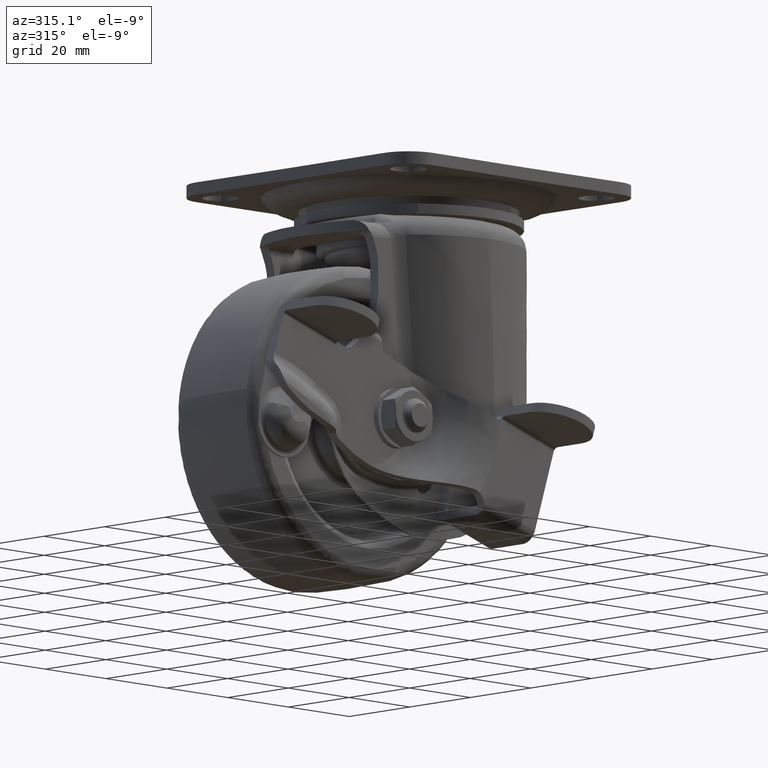
[diagram: clean part render]
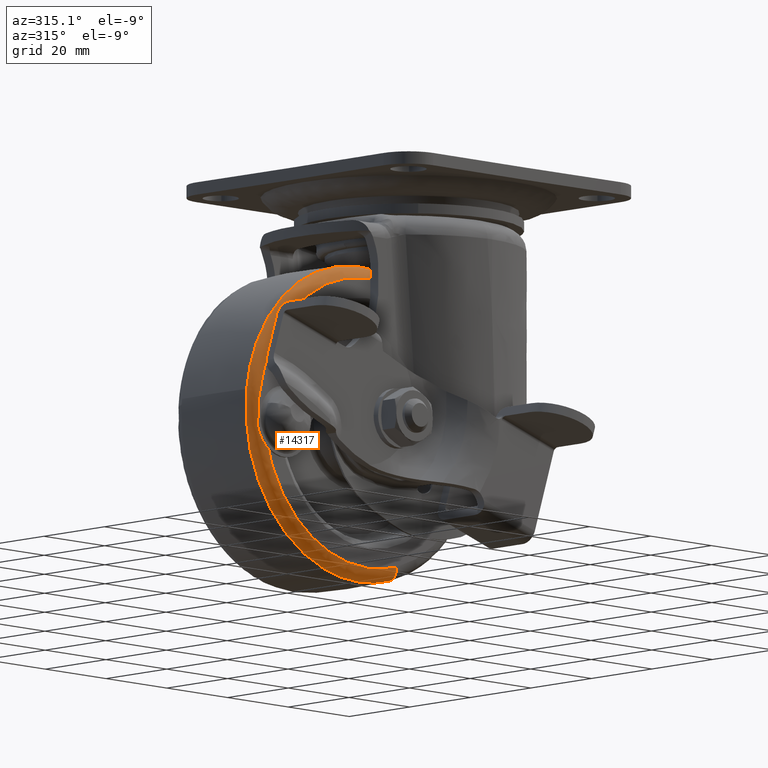
[diagram: same view with one face highlighted and labeled with its STEP entity id]
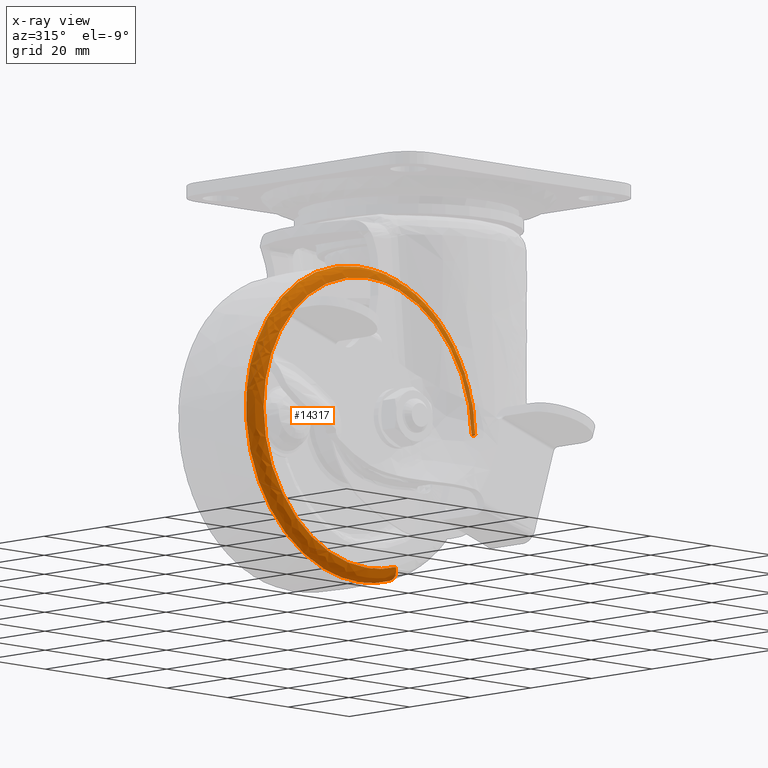
[diagram: x-ray of the same camera — body ghosted, the highlighted face saturated]
A machine part, auxiliary view. The second image highlights one B-rep face of the part: STEP entity #14317.
The next image is the same camera in x-ray: the body ghosted, the highlighted face saturated — about 3% of this face is hidden behind the body in this view.
In plain terms, the highlighted face is a freeform B-spline surface patch.
Its self-contained STEP definition (entity closure, byte-faithful):
#14085=CARTESIAN_POINT('',(10.069735967800030,-10.659898532963270,-96.327500795412334));
#14086=VERTEX_POINT('',#14085);
#14087=CARTESIAN_POINT('',(37.189271541351353,-10.659899947527540,-59.097332928867893));
#14088=VERTEX_POINT('',#14087);
#14104=CARTESIAN_POINT('',(34.195664798568473,-13.499999999999989,-59.210242738030743));
#14105=VERTEX_POINT('',#14104);
#14106=CARTESIAN_POINT('',(37.189271541351353,-10.659899947527540,-59.097332928867893));
#14107=CARTESIAN_POINT('',(37.170618175609633,-11.015117136108280,-59.098036477526733));
#14108=CARTESIAN_POINT('',(37.037789593225597,-11.577650346023880,-59.103046370686300));
#14109=CARTESIAN_POINT('',(36.626500837234722,-12.303735326046111,-59.118558940967610));
#14110=CARTESIAN_POINT('',(36.185433228083014,-12.774898771029120,-59.135194679681341));
#14111=CARTESIAN_POINT('',(35.637707360740031,-13.153581483426770,-59.155853245902591));
#14112=CARTESIAN_POINT('',(35.001216441651422,-13.425231554814300,-59.179859761902513));
#14113=CARTESIAN_POINT('',(34.479994441263422,-13.500106305026691,-59.199518682261001));
#14114=CARTESIAN_POINT('',(34.195664798568473,-13.499999999999989,-59.210242738030743));
#14115=B_SPLINE_CURVE_WITH_KNOTS('',3,(#14106,#14107,#14108,#14109,#14110,#14111,#14112,#14113,#14114),.UNSPECIFIED.,.F.,.U.,(4,1,1,1,1,1,4),(0.000000311799342,1.066994627236898,1.707203870185241,2.489612722966134,2.987563614405260,3.698924522841137,4.552519473919956),.UNSPECIFIED.);
#14116=EDGE_CURVE('',#14088,#14105,#14115,.T.);
#14118=CARTESIAN_POINT('',(9.259157306683326,-13.499999999999989,-93.443511807253586));
#14119=VERTEX_POINT('',#14118);
#14135=CARTESIAN_POINT('',(10.069735967800030,-10.659898532963270,-96.327500795412334));
#14136=CARTESIAN_POINT('',(10.066329096902891,-10.896663667484960,-96.315379358458628));
#14137=CARTESIAN_POINT('',(10.044211811572669,-11.367164035316719,-96.236687418521811));
#14138=CARTESIAN_POINT('',(9.964579443252905,-12.046371409733799,-95.953360353147829));
#14139=CARTESIAN_POINT('',(9.845874794215449,-12.613988892762761,-95.531016517713184));
#14140=CARTESIAN_POINT('',(9.699876279078493,-13.046493954885230,-95.011562786513906));
#14141=CARTESIAN_POINT('',(9.509314597790862,-13.397550297220389,-94.333556052827888));
#14142=CARTESIAN_POINT('',(9.355403335998291,-13.500291107747810,-93.785949255999256));
#14143=CARTESIAN_POINT('',(9.259157306683326,-13.499999999999989,-93.443511807253586));
#14144=B_SPLINE_CURVE_WITH_KNOTS('',3,(#14135,#14136,#14137,#14138,#14139,#14140,#14141,#14142,#14143),.UNSPECIFIED.,.F.,.U.,(4,1,1,1,1,1,4),(0.000000311794504,0.711304518510792,1.422666534817779,2.205174275777040,2.845318240321744,3.485526680914022,4.552520882826151),.UNSPECIFIED.);
#14145=EDGE_CURVE('',#14086,#14119,#14144,.T.);
#14150=CARTESIAN_POINT('',(37.193217918852888,-10.456517229577232,-59.097184083466821));
#14151=CARTESIAN_POINT('',(35.790402002319702,-10.456517229577232,-21.903966164613951));
#14152=CARTESIAN_POINT('',(-1.402815916533165,-10.456517229577232,-23.306782081147119));
#14153=CARTESIAN_POINT('',(-38.596033835386045,-10.456517229577232,-24.709597997680280));
#14154=CARTESIAN_POINT('',(-37.193217918852888,-10.456517229577232,-61.902815916533172));
#14155=CARTESIAN_POINT('',(-35.790402002319702,-10.456517229577232,-99.096033835386038));
#14156=CARTESIAN_POINT('',(1.402815916533169,-10.456517229577232,-97.693217918852881));
#14157=CARTESIAN_POINT('',(5.817639684276930,-10.456517229577232,-97.526704091961321));
#14158=CARTESIAN_POINT('',(10.070804517104849,-10.456517229577232,-96.331302628193939));
#14159=CARTESIAN_POINT('',(37.240398228411969,-13.713593272613535,-59.095404584598484));
#14160=CARTESIAN_POINT('',(35.835802813010481,-13.713593272613537,-21.855006356186518));
#14161=CARTESIAN_POINT('',(-1.404595415401503,-13.713593272613535,-23.259601771588002));
#14162=CARTESIAN_POINT('',(-38.644993643813500,-13.713593272613537,-24.664197186989533));
#14163=CARTESIAN_POINT('',(-37.240398228411969,-13.713593272613535,-61.904595415401495));
#14164=CARTESIAN_POINT('',(-35.835802813010481,-13.713593272613537,-99.144993643813535));
#14165=CARTESIAN_POINT('',(1.404595415401507,-13.713593272613535,-97.740398228411976));
#14166=CARTESIAN_POINT('',(5.825019471683505,-13.713593272613537,-97.573673175540577));
#14167=CARTESIAN_POINT('',(10.083579525593295,-13.713593272613535,-96.376755322112288));
#14168=CARTESIAN_POINT('',(33.992758900243814,-13.493120575985017,-59.217895737438596));
#14169=CARTESIAN_POINT('',(32.710654637682410,-13.493120575985017,-25.225136837194778));
#14170=CARTESIAN_POINT('',(-1.282104262561403,-13.493120575985017,-26.507241099756182));
#14171=CARTESIAN_POINT('',(-35.274863162805218,-13.493120575985017,-27.789345362317587));
#14172=CARTESIAN_POINT('',(-33.992758900243814,-13.493120575985017,-61.782104262561404));
#14173=CARTESIAN_POINT('',(-32.710654637682410,-13.493120575985017,-95.774863162805246));
#14174=CARTESIAN_POINT('',(1.282104262561406,-13.493120575985017,-94.492758900243828));
#14175=CARTESIAN_POINT('',(5.317034508484269,-13.493120575985023,-94.340573510331296));
#14176=CARTESIAN_POINT('',(9.204216495284896,-13.493120575985023,-93.248035783816235));
#14184=(BOUNDED_SURFACE()B_SPLINE_SURFACE(2,2,((#14150,#14159,#14168),(#14151,#14160,#14169),(#14152,#14161,#14170),(#14153,#14162,#14171),(#14154,#14163,#14172),(#14155,#14164,#14173),(#14156,#14165,#14174),(#14157,#14166,#14175),(#14158,#14167,#14176)),.UNSPECIFIED.,.F.,.F.,.U.)B_SPLINE_SURFACE_WITH_KNOTS((3,2,2,2,3),(3,3),(0.0,61.667557648044507,123.335115296089000,185.002672944133510,194.869482167820710),(0.0,5.262100299727032),.UNSPECIFIED.)GEOMETRIC_REPRESENTATION_ITEM()RATIONAL_B_SPLINE_SURFACE(((0.915610659033981,0.620680349365837,0.916805829764877),(0.647434505929612,0.438887283985819,0.648279619258104),(0.915610659033981,0.620680349365837,0.916805829764877),(0.647434505929612,0.438887283985819,0.648279619258104),(0.915610659033981,0.620680349365837,0.916805829764877),(0.647434505929612,0.438887283985819,0.648279619258104),(0.915610659033981,0.620680349365837,0.916805829764877),(0.872702474537282,0.591593458905034,0.873841636083794),(0.843524909079526,0.571814373391688,0.844625984380657)))REPRESENTATION_ITEM('')SURFACE());
#14185=CARTESIAN_POINT('',(0.0,-10.659898477157340,-97.715714365336453));
#14186=VERTEX_POINT('',#14185);
#14187=CARTESIAN_POINT('',(0.0,-10.659898477157340,-97.715714365336453));
#14188=CARTESIAN_POINT('',(3.399006450980416,-10.659898477135799,-97.716250707497139));
#14189=CARTESIAN_POINT('',(6.797715983534757,-10.659898495956410,-97.248073843471317));
#14190=CARTESIAN_POINT('',(10.069735967800030,-10.659898532963270,-96.327500795412334));
#14191=B_SPLINE_CURVE_WITH_KNOTS('',3,(#14187,#14188,#14189,#14190),.UNSPECIFIED.,.F.,.U.,(4,4),(2.173593E-009,10.196872120510120),.UNSPECIFIED.);
#14192=EDGE_CURVE('',#14186,#14086,#14191,.T.);
#14193=ORIENTED_EDGE('',*,*,#14192,.T.);
#14194=ORIENTED_EDGE('',*,*,#14145,.T.);
#14195=CARTESIAN_POINT('',(0.0,-13.500000000000000,-94.719979000000095));
#14196=VERTEX_POINT('',#14195);
#14197=CARTESIAN_POINT('',(0.0,-13.500000000000000,-94.719979000000095));
#14198=CARTESIAN_POINT('',(3.125414127484582,-13.499999999999959,-94.720581315632145));
#14199=CARTESIAN_POINT('',(6.250507618007710,-13.500000000000011,-94.289879901556830));
#14200=CARTESIAN_POINT('',(9.259157306683326,-13.499999999999989,-93.443511807253586));
#14201=B_SPLINE_CURVE_WITH_KNOTS('',3,(#14197,#14198,#14199,#14200),.UNSPECIFIED.,.F.,.U.,(4,4),(1.998604E-009,9.376059438122141),.UNSPECIFIED.);
#14202=EDGE_CURVE('',#14196,#14119,#14201,.T.);
#14203=ORIENTED_EDGE('',*,*,#14202,.F.);
#14204=CARTESIAN_POINT('',(-34.219978999999960,-13.500000000000000,-60.500002976506302));
#14205=VERTEX_POINT('',#14204);
#14206=CARTESIAN_POINT('',(-34.219978999999960,-13.500000000000000,-60.500002976506302));
#14207=CARTESIAN_POINT('',(-34.220118049947757,-13.500000000000030,-62.459737437889139));
#14208=CARTESIAN_POINT('',(-33.870391970890907,-13.499999999999959,-66.519160653584450));
#14209=CARTESIAN_POINT('',(-32.440661313622613,-13.500000000000030,-71.811819418938896));
#14210=CARTESIAN_POINT('',(-30.252493425009629,-13.499999999999980,-76.748044046609792));
#14211=CARTESIAN_POINT('',(-27.822063731746159,-13.500000000000121,-80.612265559703147));
#14212=CARTESIAN_POINT('',(-24.572626888066790,-13.499999999999760,-84.474057472143670));
#14213=CARTESIAN_POINT('',(-20.972138077745949,-13.500000000000020,-87.717386053561697));
#14214=CARTESIAN_POINT('',(-16.854189439768948,-13.499999999999980,-90.396229538171937));
#14215=CARTESIAN_POINT('',(-12.171084893552100,-13.500000000000210,-92.629039894933854));
#14216=CARTESIAN_POINT('',(-6.649008637031785,-13.499999999999440,-94.285564775732354));
#14217=CARTESIAN_POINT('',(-2.239706872028387,-13.500000000000711,-94.720243746942842));
#14218=CARTESIAN_POINT('',(0.0,-13.500000000000000,-94.719979000000095));
#14219=B_SPLINE_CURVE_WITH_KNOTS('',3,(#14206,#14207,#14208,#14209,#14210,#14211,#14212,#14213,#14214,#14215,#14216,#14217,#14218),.UNSPECIFIED.,.F.,.U.,(4,1,1,1,1,1,1,1,1,1,4),(0.000000104462643,5.879201363347917,12.178344900714031,16.377781454274551,22.047046253268970,25.826553161400110,31.495673203171481,36.535035114112922,40.524497307412076,47.033620108423321,53.752699960844531),.UNSPECIFIED.);
#14220=EDGE_CURVE('',#14205,#14196,#14219,.T.);
#14221=ORIENTED_EDGE('',*,*,#14220,.F.);
#14222=CARTESIAN_POINT('',(0.0,-13.500000000000000,-26.280020999999898));
#14223=VERTEX_POINT('',#14222);
#14224=CARTESIAN_POINT('',(0.0,-13.500000000000000,-26.280020999999898));
#14225=CARTESIAN_POINT('',(-2.099724971238952,-13.500000000000011,-26.279762059174299));
#14226=CARTESIAN_POINT('',(-5.039221512479217,-13.500000000000020,-26.551481474349860));
#14227=CARTESIAN_POINT('',(-9.686113271217213,-13.499999999999980,-27.594916311389149));
#14228=CARTESIAN_POINT('',(-13.263734357687710,-13.499999999999980,-28.850332097974540));
#14229=CARTESIAN_POINT('',(-17.520059399643529,-13.500000000000060,-30.992773857467590));
#14230=CARTESIAN_POINT('',(-21.066574997205748,-13.499999999999879,-33.394041760648498));
#14231=CARTESIAN_POINT('',(-24.139881422497361,-13.500000000000041,-36.162617694340902));
#14232=CARTESIAN_POINT('',(-27.103967108578580,-13.500000000000179,-39.432637543527740));
#14233=CARTESIAN_POINT('',(-29.569290120449629,-13.500000000000041,-43.026040351664363));
#14234=CARTESIAN_POINT('',(-31.659848545771350,-13.500000000000201,-47.309797784277627));
#14235=CARTESIAN_POINT('',(-33.052989258791037,-13.500000000000050,-51.279799477596043));
#14236=CARTESIAN_POINT('',(-33.997332308559763,-13.499999999998980,-55.740685012960640));
#14237=CARTESIAN_POINT('',(-34.220055788386581,-13.500000000001270,-58.890227223003933));
#14238=CARTESIAN_POINT('',(-34.219978999999960,-13.500000000000000,-60.500002976506302));
#14239=B_SPLINE_CURVE_WITH_KNOTS('',3,(#14224,#14225,#14226,#14227,#14228,#14229,#14230,#14231,#14232,#14233,#14234,#14235,#14236,#14237,#14238),.UNSPECIFIED.,.F.,.U.,(4,1,1,1,1,1,1,1,1,1,1,1,4),(0.000000103970983,6.299112642035297,8.818797643531646,14.278067594150420,17.637609909143350,23.096866362241979,27.086259428470932,30.025902664157570,36.325048942222452,40.104555205021427,44.304006100138508,48.923379130756757,53.752703316066672),.UNSPECIFIED.);
#14240=EDGE_CURVE('',#14223,#14205,#14239,.T.);
#14241=ORIENTED_EDGE('',*,*,#14240,.F.);
#14242=CARTESIAN_POINT('',(34.195664798568473,-13.499999999999989,-59.210242738030743));
#14243=CARTESIAN_POINT('',(34.116099331004818,-13.500000000000000,-57.094096720354592));
#14244=CARTESIAN_POINT('',(33.687072629646018,-13.500000000000000,-53.829149450229032));
#14245=CARTESIAN_POINT('',(32.353350771259663,-13.499999999999980,-49.088423150337597));
#14246=CARTESIAN_POINT('',(30.737938441273059,-13.500000000000000,-45.235649667035290));
#14247=CARTESIAN_POINT('',(28.459413392727040,-13.499999999999920,-41.335902522980682));
#14248=CARTESIAN_POINT('',(25.417124466828739,-13.500000000000229,-37.371101039815287));
#14249=CARTESIAN_POINT('',(21.429782992342510,-13.499999999999430,-33.599646651031328));
#14250=CARTESIAN_POINT('',(17.026840113136132,-13.500000000000909,-30.690650418200178));
#14251=CARTESIAN_POINT('',(13.199922295790349,-13.499999999998961,-28.860250049435951));
#14252=CARTESIAN_POINT('',(9.591107528848260,-13.500000000000551,-27.578153679997129));
#14253=CARTESIAN_POINT('',(5.259871264798777,-13.499999999999790,-26.561404982138608));
#14254=CARTESIAN_POINT('',(1.912700805826413,-13.500000000000080,-26.279872994838499));
#14255=CARTESIAN_POINT('',(0.0,-13.500000000000000,-26.280020999999898));
#14256=B_SPLINE_CURVE_WITH_KNOTS('',3,(#14242,#14243,#14244,#14245,#14246,#14247,#14248,#14249,#14250,#14251,#14252,#14253,#14254,#14255),.UNSPECIFIED.,.F.,.U.,(4,1,1,1,1,1,1,1,1,1,1,4),(0.000000099103687,6.352859139098236,9.836743579717080,14.755119299098510,18.853782562368181,23.362290312316912,29.715148271996728,35.248329688382682,39.142041816010817,42.420964489121722,46.724546569328723,52.462632908767482),.UNSPECIFIED.);
#14257=EDGE_CURVE('',#14105,#14223,#14256,.T.);
#14258=ORIENTED_EDGE('',*,*,#14257,.F.);
#14259=ORIENTED_EDGE('',*,*,#14116,.F.);
#14260=CARTESIAN_POINT('',(0.0,-10.659901308400510,-23.284285785782231));
#14261=VERTEX_POINT('',#14260);
#14262=CARTESIAN_POINT('',(37.189271541351353,-10.659899947527540,-59.097332928867893));
#14263=CARTESIAN_POINT('',(37.108278608515462,-10.659900029337130,-56.944412571639603));
#14264=CARTESIAN_POINT('',(36.654042729614588,-10.659900167108610,-53.318787441377111));
#14265=CARTESIAN_POINT('',(35.138572165592869,-10.659900374184261,-47.869335679589987));
#14266=CARTESIAN_POINT('',(33.049359043174519,-10.659900555852040,-43.088525528917927));
#14267=CARTESIAN_POINT('',(29.876334990796970,-10.659900747447450,-38.046454686253817));
#14268=CARTESIAN_POINT('',(26.185836273428411,-10.659900907207810,-33.842166021581477));
#14269=CARTESIAN_POINT('',(22.067466947184059,-10.659901037599701,-30.410742745653071));
#14270=CARTESIAN_POINT('',(18.493476917320049,-10.659901124440641,-28.125416817545592));
#14271=CARTESIAN_POINT('',(14.370563855487790,-10.659901202872550,-26.061379603830261));
#14272=CARTESIAN_POINT('',(9.800546287475227,-10.659901263982610,-24.453209959607371));
#14273=CARTESIAN_POINT('',(4.680292143198903,-10.659901301121760,-23.475816171809370));
#14274=CARTESIAN_POINT('',(1.485800456223709,-10.659901308402560,-23.284252511529271));
#14275=CARTESIAN_POINT('',(0.0,-10.659901308400510,-23.284285785782231));
#14276=B_SPLINE_CURVE_WITH_KNOTS('',3,(#14262,#14263,#14264,#14265,#14266,#14267,#14268,#14269,#14270,#14271,#14272,#14273,#14274,#14275),.UNSPECIFIED.,.F.,.U.,(4,1,1,1,1,1,1,1,1,1,1,4),(0.000000096938052,6.463295394550137,10.920758588153250,16.938334008226949,22.064426866775921,28.750506848384038,33.653727717052313,38.111196339329332,41.454306384173357,47.471893433545560,52.597984544578381,57.055393151970407),.UNSPECIFIED.);
#14277=EDGE_CURVE('',#14088,#14261,#14276,.T.);
#14278=ORIENTED_EDGE('',*,*,#14277,.T.);
#14279=CARTESIAN_POINT('',(-36.966803549138383,-10.659906344842870,-56.202931252039619));
#14280=VERTEX_POINT('',#14279);
#14281=CARTESIAN_POINT('',(0.0,-10.659901308400510,-23.284285785782231));
#14282=CARTESIAN_POINT('',(-2.679423367021353,-10.659901511966909,-23.283781982225118));
#14283=CARTESIAN_POINT('',(-6.768756639778559,-10.659901852758640,-23.727979608862839));
#14284=CARTESIAN_POINT('',(-12.549786860427290,-10.659902401494289,-25.345559150358842));
#14285=CARTESIAN_POINT('',(-17.226792253399950,-10.659902893075479,-27.358268933559089));
#14286=CARTESIAN_POINT('',(-21.734876473085730,-10.659903424417340,-30.148278613672829));
#14287=CARTESIAN_POINT('',(-25.983603251082080,-10.659903984821320,-33.659035809219581));
#14288=CARTESIAN_POINT('',(-29.568555572659239,-10.659904528512310,-37.668208652636693));
#14289=CARTESIAN_POINT('',(-32.158766119610519,-10.659904993484799,-41.631083748189340));
#14290=CARTESIAN_POINT('',(-34.026223799122647,-10.659905381819661,-45.273026005529680));
#14291=CARTESIAN_POINT('',(-35.834317667818823,-10.659905830612040,-49.875080842181930));
#14292=CARTESIAN_POINT('',(-36.682205954096212,-10.659906157341011,-53.751519437335638));
#14293=CARTESIAN_POINT('',(-36.966803549138383,-10.659906344842870,-56.202931252039619));
#14294=B_SPLINE_CURVE_WITH_KNOTS('',3,(#14281,#14282,#14283,#14284,#14285,#14286,#14287,#14288,#14289,#14290,#14291,#14292,#14293),.UNSPECIFIED.,.F.,.U.,(4,1,1,1,1,1,1,1,1,1,4),(0.000000086295515,8.038114955421904,12.268744668801240,17.980075320867300,23.268360701737489,28.133465073742741,34.479401638956759,39.344593074602507,42.306021737806780,46.748156542256737,54.151705421894448),.UNSPECIFIED.);
#14295=EDGE_CURVE('',#14261,#14280,#14294,.T.);
#14296=ORIENTED_EDGE('',*,*,#14295,.T.);
#14297=CARTESIAN_POINT('',(-36.966803549138383,-10.659906344842870,-56.202931252039619));
#14298=CARTESIAN_POINT('',(-37.297621506352399,-10.659906075652779,-59.044167013652320));
#14299=CARTESIAN_POINT('',(-37.298728252267573,-10.659905597474459,-63.568909629000572));
#14300=CARTESIAN_POINT('',(-36.238398468269089,-10.659904884486309,-69.369844918802386));
#14301=CARTESIAN_POINT('',(-34.921162746477762,-10.659904314505591,-73.589101112171861));
#14302=CARTESIAN_POINT('',(-33.008783827676240,-10.659903675180709,-77.934409999657063));
#14303=CARTESIAN_POINT('',(-30.353585129717050,-10.659902967117420,-82.268535798610884));
#14304=CARTESIAN_POINT('',(-27.194940465822210,-10.659902271722819,-86.034497145925528));
#14305=CARTESIAN_POINT('',(-23.498013985603670,-10.659901556503740,-89.508668528286250));
#14306=CARTESIAN_POINT('',(-19.690804690933120,-10.659900911276690,-92.222487497540030));
#14307=CARTESIAN_POINT('',(-15.119680714560380,-10.659900228902400,-94.607465120710373));
#14308=CARTESIAN_POINT('',(-10.364499208101901,-10.659899592640450,-96.392306267576615));
#14309=CARTESIAN_POINT('',(-5.148683671548854,-10.659898985604981,-97.490459457750234));
#14310=CARTESIAN_POINT('',(-1.552767849258533,-10.659898623314801,-97.715734286227757));
#14311=CARTESIAN_POINT('',(0.0,-10.659898477157340,-97.715714365336453));
#14312=B_SPLINE_CURVE_WITH_KNOTS('',3,(#14297,#14298,#14299,#14300,#14301,#14302,#14303,#14304,#14305,#14306,#14307,#14308,#14309,#14310,#14311),.UNSPECIFIED.,.F.,.U.,(4,1,1,1,1,1,1,1,1,1,1,1,4),(0.000000106621705,8.581145449860486,13.484677653118480,17.652694774593868,21.820709127944529,27.704916348564751,32.853534876118928,36.531197742696833,42.905825091171351,46.828645207573722,51.977369007824592,58.106775339287651,62.765095197929377),.UNSPECIFIED.);
#14313=EDGE_CURVE('',#14280,#14186,#14312,.T.);
#14314=ORIENTED_EDGE('',*,*,#14313,.T.);
#14315=EDGE_LOOP('',(#14193,#14194,#14203,#14221,#14241,#14258,#14259,#14278,#14296,#14314));
#14316=FACE_OUTER_BOUND('',#14315,.T.);
#14317=ADVANCED_FACE('',(#14316),#14184,.T.);